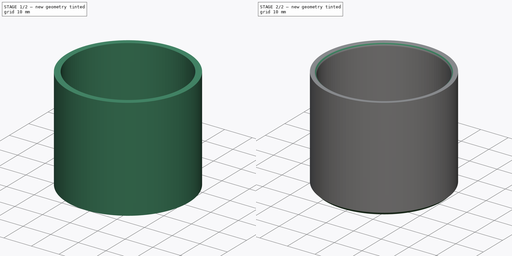
[diagram: build sequence overview — one tinted view per stage of 2, left to right]
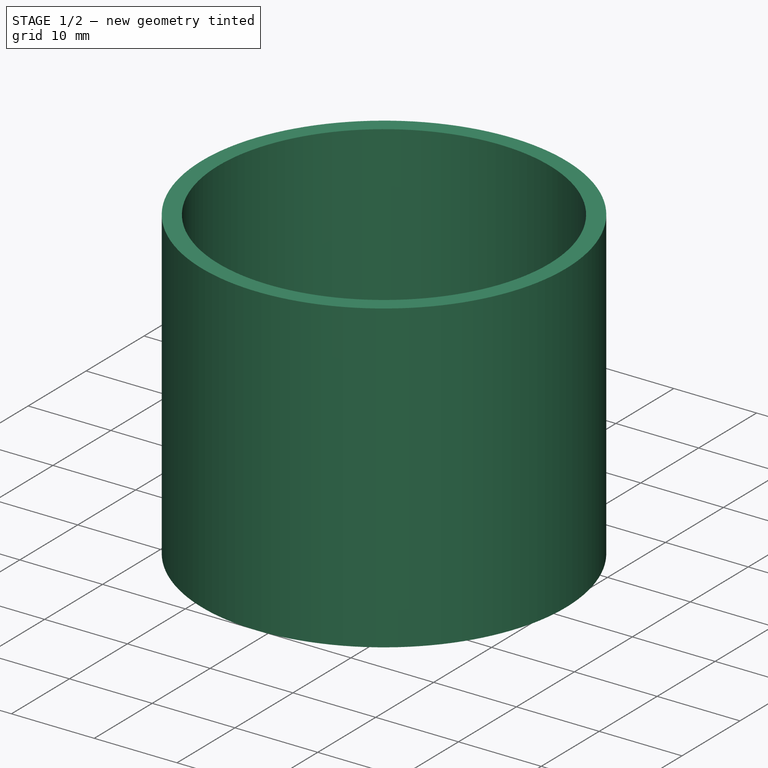
[diagram: stage 1 of 2 — iso view after this stage's code; geometry added in this stage tinted green]
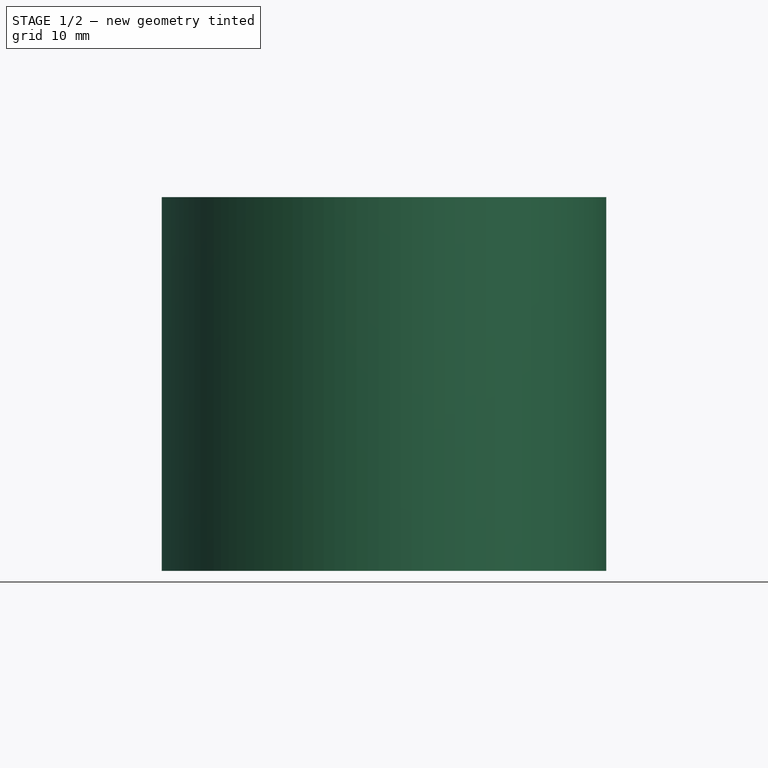
[diagram: stage 1 of 2 — front view after this stage's code; geometry added in this stage tinted green]
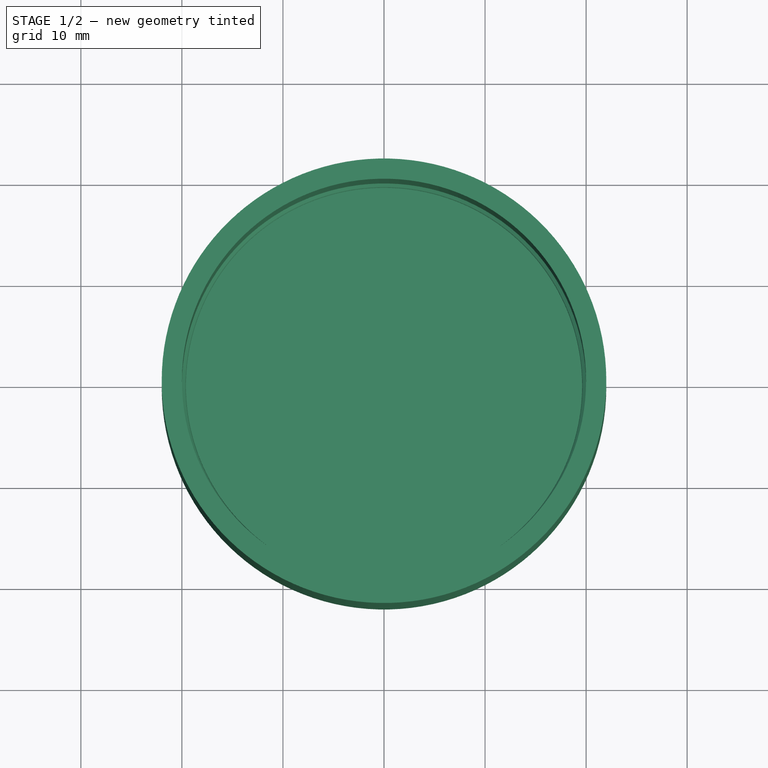
[diagram: stage 1 of 2 — top view after this stage's code; geometry added in this stage tinted green]
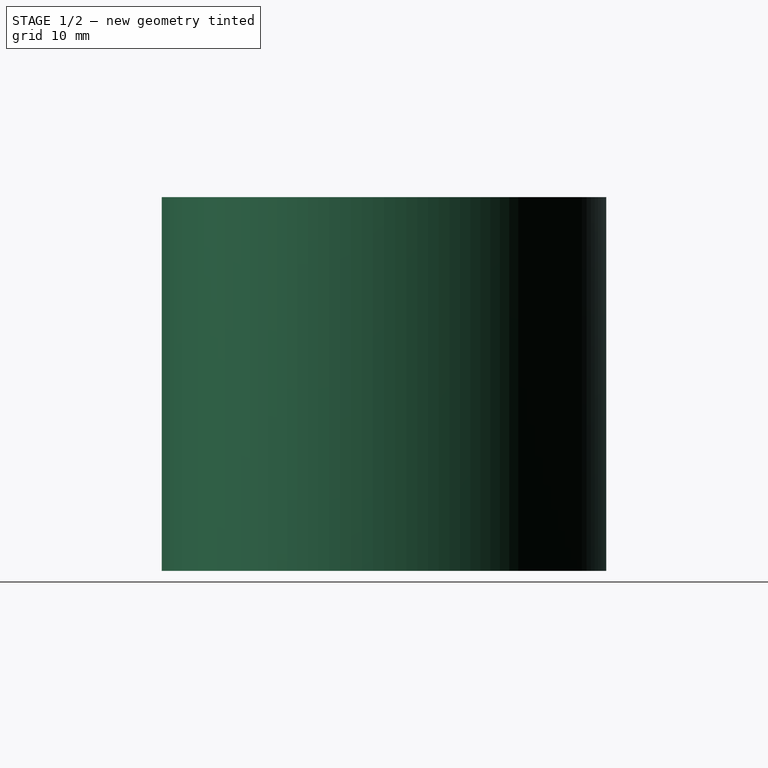
[diagram: stage 1 of 2 — right view after this stage's code; geometry added in this stage tinted green]
FCSTD DOCUMENT  (FreeCAD 1.0R39109 (Git))
Label: baton_cap_2
License: All rights reserved
LicenseURL: https://en.wikipedia.org/wiki/All_rights_reserved
objects: PartDesign::Fillet×2, Sketcher::SketchObject×1, PartDesign::Revolution×1, PartDesign::Chamfer×1, PartDesign::Body×1
note: 15 computed .brp shape members not serialized (recipe doc carries the construction recipe); baked Part::Feature solids carry a one-line shape summary decoded from their .brp

FEATURE [Sketcher::SketchObject] Sketch
  ArcFitTolerance = 1e-06
  AttachmentSupport = -> [XZ_Plane]
  FullyConstrained = true
  MakeInternals = false
  MapMode = 5
  Placement = pos=(0,0,0) rot=(1,0,0;1.5708rad)
  sketch-geometry (13):
    g0: LineSegment StartX=22 StartY=0 StartZ=0 EndX=22 EndY=37 EndZ=0
    g1: LineSegment StartX=22 StartY=37 StartZ=0 EndX=20 EndY=37 EndZ=0
    g2: LineSegment [constr] StartX=20 StartY=37 StartZ=0 EndX=20 EndY=2 EndZ=0
    g3: LineSegment StartX=22 StartY=0 StartZ=0 EndX=0 EndY=0 EndZ=0
    g4: LineSegment StartX=20 StartY=2 StartZ=0 EndX=0 EndY=2 EndZ=0
    g5: LineSegment StartX=0 StartY=2 StartZ=0 EndX=0 EndY=0 EndZ=0
    g6: LineSegment StartX=20 StartY=10 StartZ=0 EndX=19.5 EndY=9.5 EndZ=0
    g7: LineSegment StartX=19.5 StartY=9.5 StartZ=0 EndX=20 EndY=9 EndZ=0
    g8: LineSegment StartX=20 StartY=8 StartZ=0 EndX=19.5 EndY=7.5 EndZ=0
    g9: LineSegment StartX=19.5 StartY=7.5 StartZ=0 EndX=20 EndY=7 EndZ=0
    g10: LineSegment StartX=20 StartY=7 StartZ=0 EndX=20 EndY=2 EndZ=0
    g11: LineSegment StartX=20 StartY=8 StartZ=0 EndX=20 EndY=9 EndZ=0
    g12: LineSegment StartX=20 StartY=10 StartZ=0 EndX=20 EndY=37 EndZ=0
  constraints (37):
    c: Vertical(g0)
    c: Coincident(g1,g0)
    c: Horizontal(g1)
    c: Coincident(g2,g1)
    c: Vertical(g2)
    c: Distance(g1,g1) = 2
    c: Coincident(g3,g0)
    c: Coincident(g3,g-1)
    c: Coincident(g4,g2)
    c: PointOnObject(g4,g-2)
    c: Horizontal(g4)
    c: Coincident(g5,g4)
    c: Coincident(g5,g3)
    c: PointOnObject(g0,g-1)
    c: DistanceX(g4,g4) = 20
    c: DistanceY(g0,g2) = 2
    c: DistanceY(g2,g2) = 35
    c: PointOnObject(g6,g2)
    c: Coincident(g7,g6)
    c: PointOnObject(g7,g2)
    c: Coincident(g9,g8)
    c: PointOnObject(g9,g2)
    c: Angle(g7,g6) = 1.5708
    c: Angle(g9,g8) = 1.5708
    c: Angle(g6,g2) = 0.785398
    c: Angle(g2,g9) = 0.785398
    c: DistanceX(g6,g6) = 0.5
    c: PointOnObject(g8,g2)
    c: Equal(g6,g8)
    c: Coincident(g10,g9)
    c: Coincident(g10,g2)
    c: Coincident(g11,g8)
    c: Coincident(g11,g7)
    c: Coincident(g12,g6)
    c: Coincident(g12,g1)
    c: DistanceY(g10,g10) = 5
    c: DistanceY(g11,g11) = 1
FEATURE [PartDesign::Revolution] Revolution
  Angle = 360
  Angle2 = 60
  Axis = (0,2e-16,1)
  Base = (0,0,0)
  Placement = pos=(0,0,0) rot=(1,0,0;1.5708rad)
  Profile = -> Sketch
  ReferenceAxis = -> Sketch [V_Axis]
  Refine = true
  Suppressed = false
  Type = 0
FEATURE [PartDesign::Fillet] Fillet
  Base = -> Revolution [Edge2,Edge14]
  BaseFeature = -> Revolution
  Placement = pos=(0,0,0) rot=(1,0,0;1.5708rad)
  Radius = 0.25
  Refine = true
  SupportTransform = false
  Suppressed = false
  UseAllEdges = false
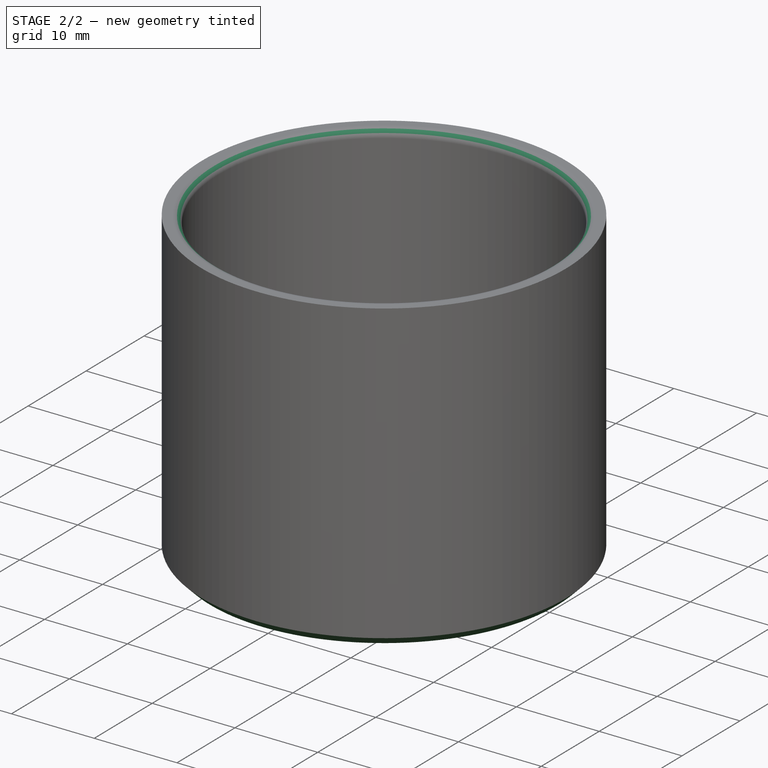
[diagram: stage 2 of 2 — iso view after this stage's code; geometry added in this stage tinted green]
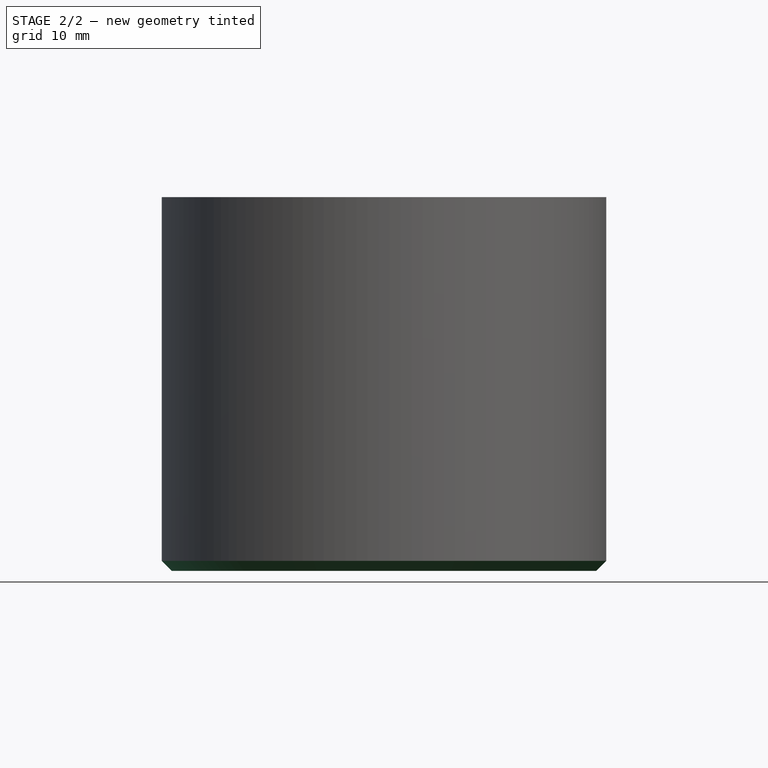
[diagram: stage 2 of 2 — front view after this stage's code; geometry added in this stage tinted green]
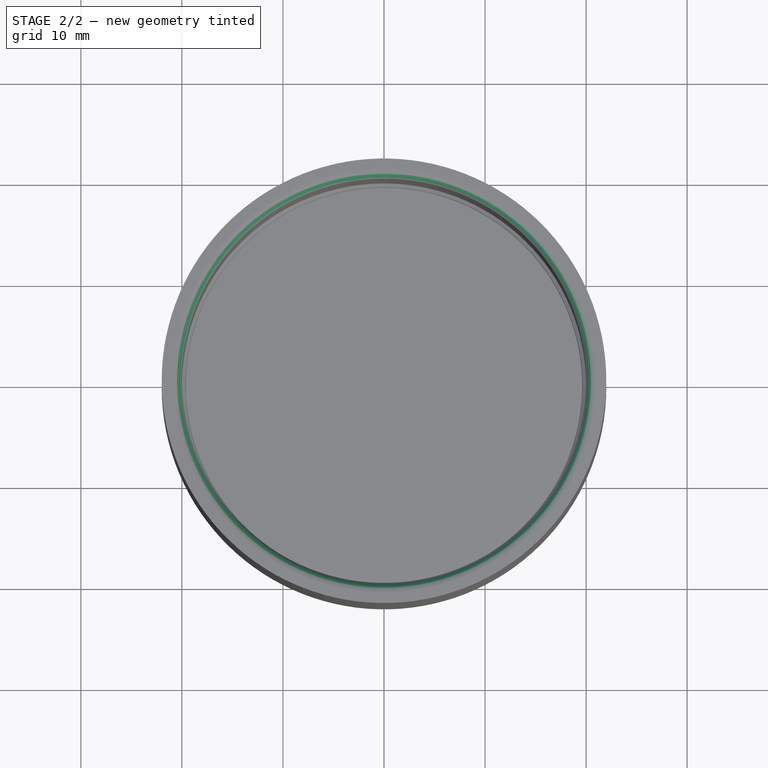
[diagram: stage 2 of 2 — top view after this stage's code; geometry added in this stage tinted green]
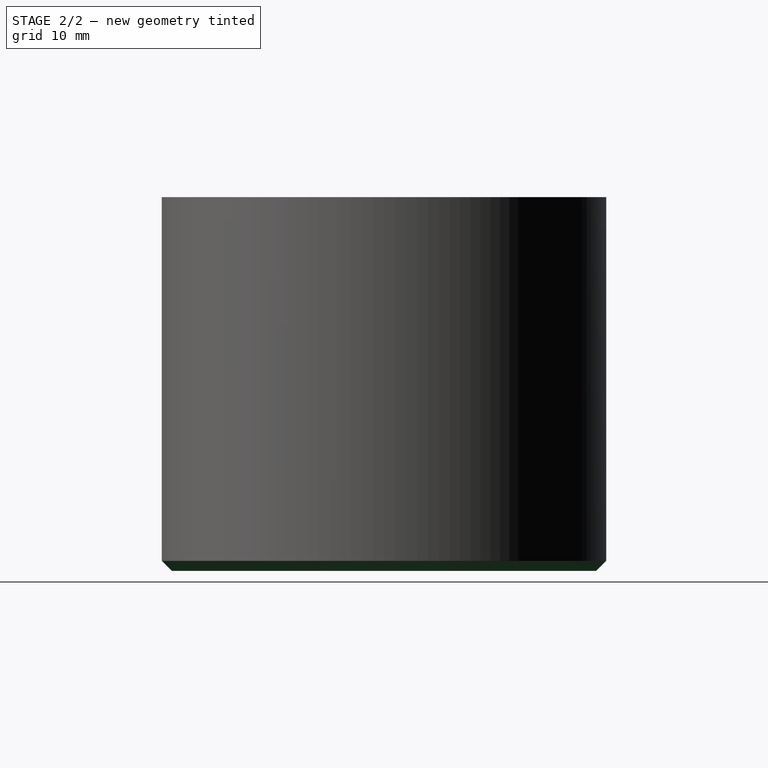
[diagram: stage 2 of 2 — right view after this stage's code; geometry added in this stage tinted green]
FEATURE [PartDesign::Fillet] Fillet001
  Base = -> Fillet [Edge18]
  BaseFeature = -> Fillet
  Placement = pos=(0,0,0) rot=(1,0,0;1.5708rad)
  Radius = 1
  Refine = true
  SupportTransform = false
  Suppressed = false
  UseAllEdges = false
FEATURE [PartDesign::Chamfer] Chamfer
  Angle = 45
  Base = -> Fillet001 [Edge11]
  BaseFeature = -> Fillet001
  ChamferType = 0
  FlipDirection = false
  Placement = pos=(0,0,0) rot=(1,0,0;1.5708rad)
  Refine = true
  Size = 1
  Size2 = 1
  SupportTransform = false
  Suppressed = false
  UseAllEdges = false
FEATURE [PartDesign::Body] Body
  AllowCompound = false
  Group = -> [Sketch,Revolution,Fillet,Fillet001,Chamfer]
  Origin = -> Origin
  Tip = -> Chamfer
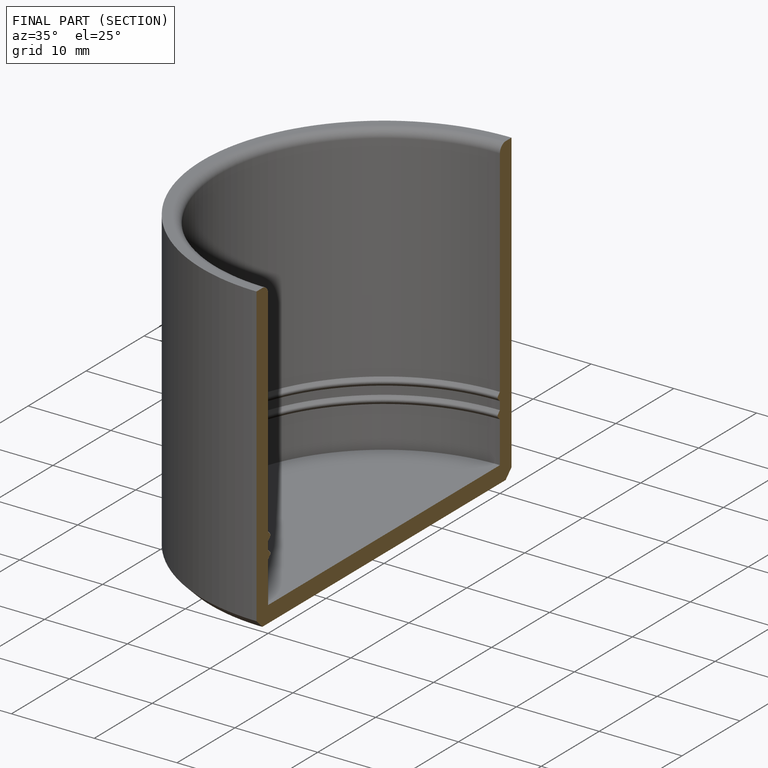
[diagram: finished part — half-section view (interior)]
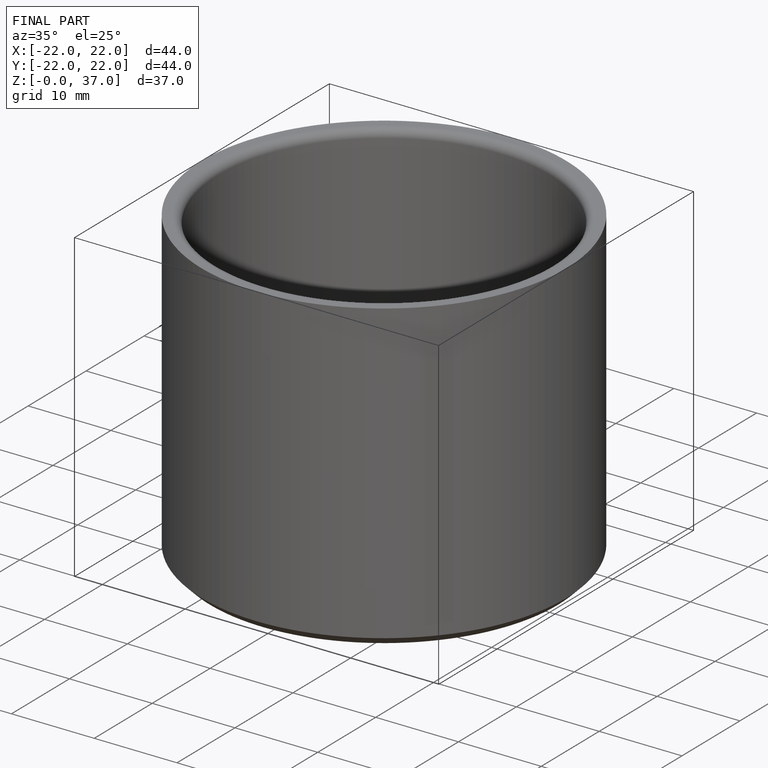
[diagram: finished part — iso view with bounding-box wireframe]
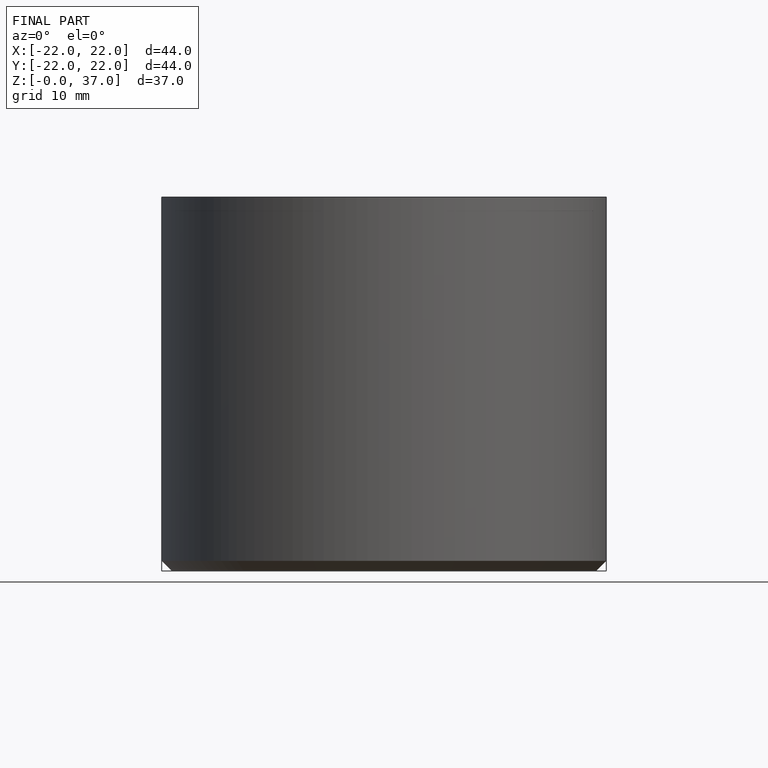
[diagram: finished part — front view with bounding-box wireframe]
